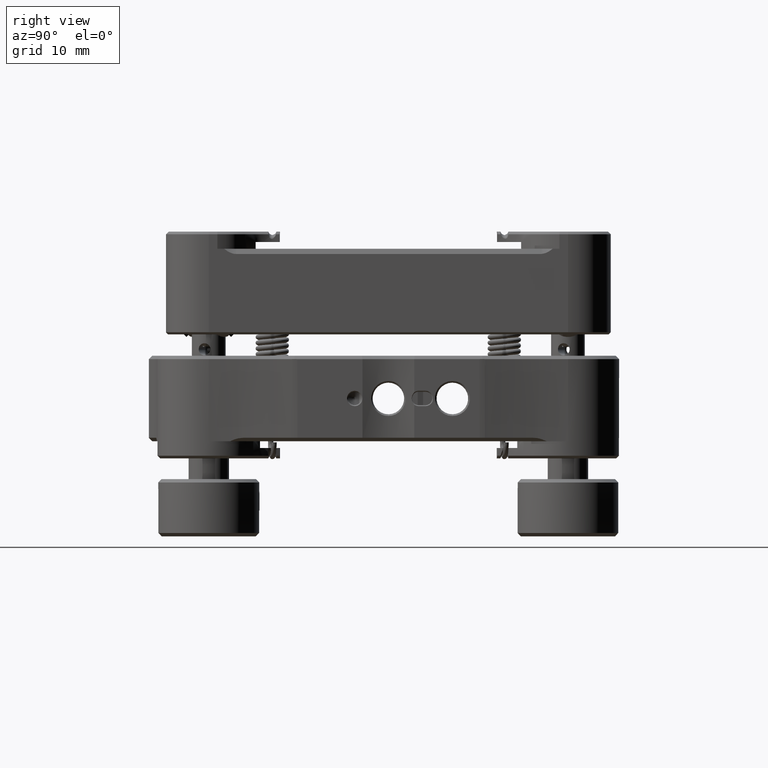
[diagram: clean part render]
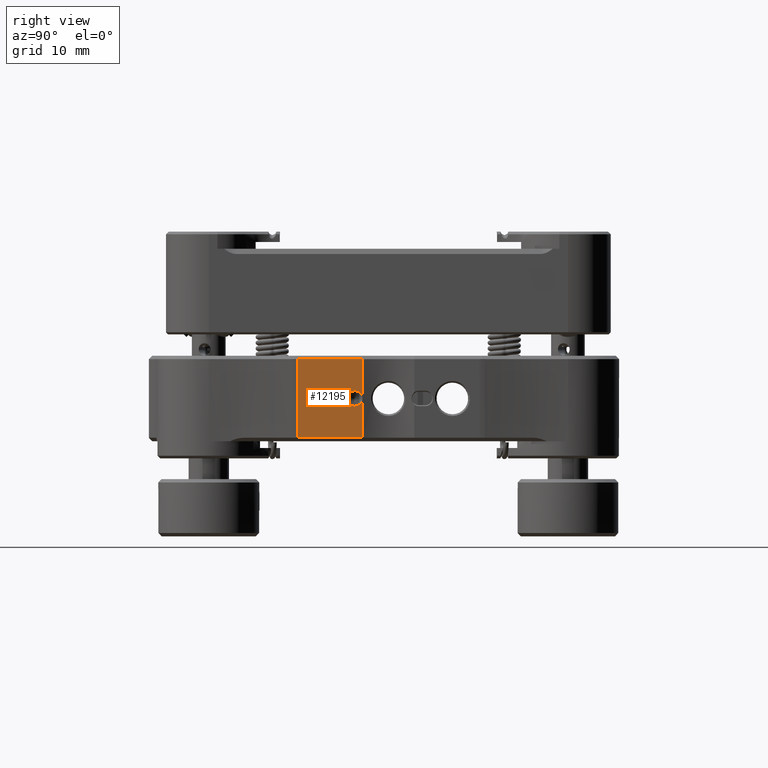
[diagram: same view with one face highlighted and labeled with its STEP entity id]
A machine part, right view. The second image highlights one B-rep face of the part: STEP entity #12195.
In plain terms, the highlighted planar face has unit normal (1, -0, 0).
Its self-contained STEP definition (entity closure, byte-faithful):
#458 = DIRECTION ( 'NONE',  ( 2.220446049250313081E-16, 1.000000000000000000, 0.000000000000000000 ) ) ;
#614 = CARTESIAN_POINT ( 'NONE',  ( 10.18343117310591595, 36.62904029627779323, -57.13401008775596779 ) ) ;
#1772 = AXIS2_PLACEMENT_3D ( 'NONE', #26015, #15112, #12576 ) ;
#2682 = CARTESIAN_POINT ( 'NONE',  ( 10.18343117310591417, 27.13046265874774221, -57.13447705214350947 ) ) ;
#3043 = B_SPLINE_CURVE_WITH_KNOTS ( 'NONE', 3,
 ( #24692, #614, #29886, #19823, #17631, #5961, #17484 ),
 .UNSPECIFIED., .F., .F.,
 ( 4, 3, 4 ),
 ( 6.938893903907228378E-18, 9.247724009695670942E-05, 0.0001853438902243030508 ),
 .UNSPECIFIED. ) ;
#3674 = CIRCLE ( 'NONE', #23283, 1.143000000013216777 ) ;
#4995 = LINE ( 'NONE', #17290, #15460 ) ;
#5481 = LINE ( 'NONE', #7862, #30505 ) ;
#5492 = FACE_OUTER_BOUND ( 'NONE', #27230, .T. ) ;
#5674 = ORIENTED_EDGE ( 'NONE', *, *, #10622, .T. ) ;
#5961 = CARTESIAN_POINT ( 'NONE',  ( 10.18343117310588575, 36.75229647706215985, -57.12502668884363999 ) ) ;
#6114 = DIRECTION ( 'NONE',  ( 2.220446049250313081E-16, 1.000000000000000000, 0.000000000000000000 ) ) ;
#6457 = ORIENTED_EDGE ( 'NONE', *, *, #20320, .T. ) ;
#6990 = FACE_BOUND ( 'NONE', #13543, .T. ) ;
#7862 = CARTESIAN_POINT ( 'NONE',  ( 10.18343117310591595, 40.62924649506378927, -45.45302420018478529 ) ) ;
#8332 = CARTESIAN_POINT ( 'NONE',  ( 10.18343117310592660, 27.12688675442700870, -57.13444250768129251 ) ) ;
#9029 = CARTESIAN_POINT ( 'NONE',  ( 10.18343117310591595, 36.59821808669103405, -57.13447705214351657 ) ) ;
#9493 = PLANE ( 'NONE',  #1772 ) ;
#10011 = ORIENTED_EDGE ( 'NONE', *, *, #30879, .T. ) ;
#10622 = EDGE_CURVE ( 'NONE', #10647, #10647, #3674, .T. ) ;
#10647 = VERTEX_POINT ( 'NONE', #27325 ) ;
#12130 = VERTEX_POINT ( 'NONE', #9029 ) ;
#12195 = ADVANCED_FACE ( 'NONE', ( #6990, #5492 ), #9493, .T. ) ;
#12576 = DIRECTION ( 'NONE',  ( 0.000000000000000000, 0.000000000000000000, -1.000000000000000000 ) ) ;
#13459 = ORIENTED_EDGE ( 'NONE', *, *, #24135, .F. ) ;
#13487 = VECTOR ( 'NONE', #6114, 1000.000000000000000 ) ;
#13543 = EDGE_LOOP ( 'NONE', ( #5674 ) ) ;
#14922 = EDGE_CURVE ( 'NONE', #30225, #16057, #15012, .T. ) ;
#15012 = LINE ( 'NONE', #23871, #22971 ) ;
#15112 = DIRECTION ( 'NONE',  ( 1.000000000000000000, -2.220446049250313081E-16, 0.000000000000000000 ) ) ;
#15460 = VECTOR ( 'NONE', #26713, 1000.000000000000000 ) ;
#16057 = VERTEX_POINT ( 'NONE', #26881 ) ;
#17035 = CARTESIAN_POINT ( 'NONE',  ( 10.18343117314498514, 35.62544649506369154, -51.29502420018479114 ) ) ;
#17290 = CARTESIAN_POINT ( 'NONE',  ( 10.18343117310591239, 27.12688675442701225, -60.18502420018479881 ) ) ;
#17484 = CARTESIAN_POINT ( 'NONE',  ( 10.18343117310591595, 36.78292826069989729, -57.12053631940949572 ) ) ;
#17631 = CARTESIAN_POINT ( 'NONE',  ( 10.18343117310591772, 36.72149132633152391, -57.12845798076753567 ) ) ;
#18551 = VECTOR ( 'NONE', #28969, 1000.000000000000114 ) ;
#18833 = CARTESIAN_POINT ( 'NONE',  ( 10.18343117310591595, 36.78292826069989729, -57.12053631940949572 ) ) ;
#19823 = CARTESIAN_POINT ( 'NONE',  ( 10.18343117310591772, 36.69062360939953749, -57.13083571874531685 ) ) ;
#20320 = EDGE_CURVE ( 'NONE', #12130, #30225, #3043, .T. ) ;
#20624 = ORIENTED_EDGE ( 'NONE', *, *, #22172, .T. ) ;
#20749 = CARTESIAN_POINT ( 'NONE',  ( 10.18343117310591595, 40.62924649506378927, -57.13447705214350947 ) ) ;
#21777 = VERTEX_POINT ( 'NONE', #2682 ) ;
#21902 = DIRECTION ( 'NONE',  ( 0.000000000000000000, 0.000000000000000000, -1.000000000000000000 ) ) ;
#22031 = LINE ( 'NONE', #24234, #18551 ) ;
#22172 = EDGE_CURVE ( 'NONE', #24877, #28725, #4995, .T. ) ;
#22295 = CARTESIAN_POINT ( 'NONE',  ( 10.18343117310592838, 27.12688675442701225, -45.45302420018479239 ) ) ;
#22971 = VECTOR ( 'NONE', #24605, 1000.000000000000000 ) ;
#23283 = AXIS2_PLACEMENT_3D ( 'NONE', #17035, #26041, #21902 ) ;
#23326 = ORIENTED_EDGE ( 'NONE', *, *, #26640, .T. ) ;
#23871 = CARTESIAN_POINT ( 'NONE',  ( 10.18343117310591417, 36.78292826069989729, -60.18502420018479881 ) ) ;
#24135 = EDGE_CURVE ( 'NONE', #24877, #16057, #5481, .T. ) ;
#24234 = CARTESIAN_POINT ( 'NONE',  ( 10.18343117310591239, 27.12688675442701225, -57.13444250768130672 ) ) ;
#24605 = DIRECTION ( 'NONE',  ( 0.000000000000000000, -0.000000000000000000, 1.000000000000000000 ) ) ;
#24692 = CARTESIAN_POINT ( 'NONE',  ( 10.18343117310591595, 36.59821808669103405, -57.13447705214351657 ) ) ;
#24877 = VERTEX_POINT ( 'NONE', #22295 ) ;
#26015 = CARTESIAN_POINT ( 'NONE',  ( 10.18343117310591595, 40.62924649506378927, -60.18502420018479881 ) ) ;
#26041 = DIRECTION ( 'NONE',  ( -1.000000000000000000, 2.220446049250313081E-16, -0.000000000000000000 ) ) ;
#26640 = EDGE_CURVE ( 'NONE', #21777, #12130, #28295, .T. ) ;
#26713 = DIRECTION ( 'NONE',  ( 0.000000000000000000, 0.000000000000000000, -1.000000000000000000 ) ) ;
#26881 = CARTESIAN_POINT ( 'NONE',  ( 10.18343117310591595, 36.78292826069990440, -45.45302420018478529 ) ) ;
#27230 = EDGE_LOOP ( 'NONE', ( #10011, #23326, #6457, #30923, #13459, #20624 ) ) ;
#27325 = CARTESIAN_POINT ( 'NONE',  ( 10.18343117314498514, 35.62544649506369154, -52.43802420019800792 ) ) ;
#28295 = LINE ( 'NONE', #20749, #13487 ) ;
#28725 = VERTEX_POINT ( 'NONE', #8332 ) ;
#28969 = DIRECTION ( 'NONE',  ( 2.220342448016894706E-16, 0.9999533421523781884, -0.009659892250364534444 ) ) ;
#29886 = CARTESIAN_POINT ( 'NONE',  ( 10.18343117310591772, 36.65988891168722574, -57.13320321026233728 ) ) ;
#30225 = VERTEX_POINT ( 'NONE', #18833 ) ;
#30505 = VECTOR ( 'NONE', #458, 1000.000000000000000 ) ;
#30879 = EDGE_CURVE ( 'NONE', #28725, #21777, #22031, .T. ) ;
#30923 = ORIENTED_EDGE ( 'NONE', *, *, #14922, .T. ) ;